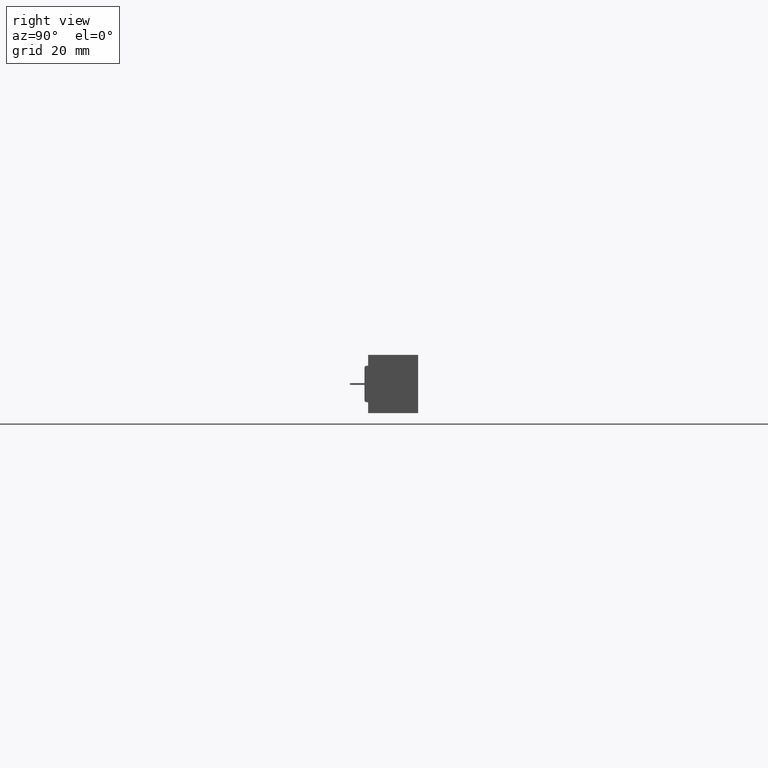
[diagram: clean part render]
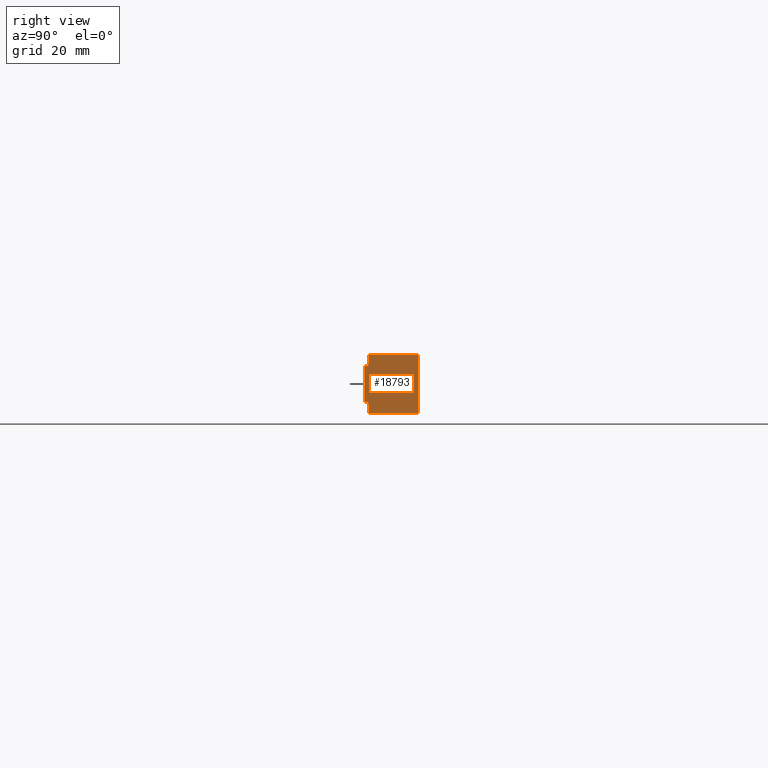
[diagram: same view with one face highlighted and labeled with its STEP entity id]
A machine part, right view. The second image highlights one B-rep face of the part: STEP entity #18793.
In plain terms, the highlighted planar face has unit normal (-1, 0, 0).
Its self-contained STEP definition (entity closure, byte-faithful):
#242 = ORIENTED_EDGE ( 'NONE', *, *, #6660, .T. ) ;
#287 = ORIENTED_EDGE ( 'NONE', *, *, #30748, .F. ) ;
#526 = CARTESIAN_POINT ( 'NONE',  ( 6.535999999999999600, 0.4600000000000000200, 0.0000000000000000000 ) ) ;
#1060 = CARTESIAN_POINT ( 'NONE',  ( 6.535999999999999600, 0.0000000000000000000, -0.4065000000000000300 ) ) ;
#1741 = EDGE_CURVE ( 'NONE', #19313, #21813, #28073, .T. ) ;
#1929 = DIRECTION ( 'NONE',  ( -1.000000000000000000, 0.0000000000000000000, -0.0000000000000000000 ) ) ;
#2642 = LINE ( 'NONE', #31042, #24795 ) ;
#2698 = ORIENTED_EDGE ( 'NONE', *, *, #27819, .F. ) ;
#3243 = ORIENTED_EDGE ( 'NONE', *, *, #25976, .T. ) ;
#3784 = VERTEX_POINT ( 'NONE', #8298 ) ;
#3962 = AXIS2_PLACEMENT_3D ( 'NONE', #18623, #1929, #21439 ) ;
#4544 = CARTESIAN_POINT ( 'NONE',  ( 6.535999999999999600, 0.0000000000000000000, -0.3915000000000000700 ) ) ;
#5618 = EDGE_CURVE ( 'NONE', #26488, #19313, #23492, .T. ) ;
#6484 = VECTOR ( 'NONE', #10250, 39.37007874015748100 ) ;
#6660 = EDGE_CURVE ( 'NONE', #3784, #11920, #29410, .T. ) ;
#6917 = VECTOR ( 'NONE', #29665, 39.37007874015748100 ) ;
#6937 = DIRECTION ( 'NONE',  ( 1.000000000000000000, 0.0000000000000000000, 0.0000000000000000000 ) ) ;
#7710 = DIRECTION ( 'NONE',  ( 0.0000000000000000000, 0.0000000000000000000, 1.000000000000000000 ) ) ;
#7961 = AXIS2_PLACEMENT_3D ( 'NONE', #32001, #32047, #7710 ) ;
#8298 = CARTESIAN_POINT ( 'NONE',  ( 6.535999999999999600, 0.01499999999999999900, -0.09349999999999997200 ) ) ;
#8403 = LINE ( 'NONE', #14850, #14083 ) ;
#8615 = VERTEX_POINT ( 'NONE', #4544 ) ;
#8809 = ORIENTED_EDGE ( 'NONE', *, *, #1741, .T. ) ;
#9381 = ORIENTED_EDGE ( 'NONE', *, *, #21696, .F. ) ;
#10163 = CARTESIAN_POINT ( 'NONE',  ( 6.535999999999999600, 0.0000000000000000000, 0.0000000000000000000 ) ) ;
#10250 = DIRECTION ( 'NONE',  ( 0.0000000000000000000, 1.000000000000000000, 0.0000000000000000000 ) ) ;
#10611 = EDGE_CURVE ( 'NONE', #3784, #31899, #33920, .T. ) ;
#10767 = LINE ( 'NONE', #1060, #33435 ) ;
#10806 = VECTOR ( 'NONE', #13019, 39.37007874015748100 ) ;
#11689 = CARTESIAN_POINT ( 'NONE',  ( 6.535999999999999600, 0.03100000000000000000, -0.4999999999999987800 ) ) ;
#11708 = LINE ( 'NONE', #10163, #10806 ) ;
#11920 = VERTEX_POINT ( 'NONE', #24100 ) ;
#12042 = DIRECTION ( 'NONE',  ( -0.0000000000000000000, 1.000000000000000000, -0.0000000000000000000 ) ) ;
#12804 = FACE_OUTER_BOUND ( 'NONE', #26079, .T. ) ;
#13019 = DIRECTION ( 'NONE',  ( -0.0000000000000000000, -0.0000000000000000000, 1.000000000000000000 ) ) ;
#13380 = CARTESIAN_POINT ( 'NONE',  ( 6.535999999999999600, 0.03100000000000000000, -0.4065000000000000300 ) ) ;
#13883 = VERTEX_POINT ( 'NONE', #16381 ) ;
#14083 = VECTOR ( 'NONE', #23166, 39.37007874015748100 ) ;
#14850 = CARTESIAN_POINT ( 'NONE',  ( 6.535999999999999600, 0.03100000000000000000, -0.5000000000000000000 ) ) ;
#15310 = VECTOR ( 'NONE', #12042, 39.37007874015748100 ) ;
#16325 = CARTESIAN_POINT ( 'NONE',  ( 6.535999999999999600, 0.0000000000000000000, -0.4999999999999987800 ) ) ;
#16381 = CARTESIAN_POINT ( 'NONE',  ( 6.535999999999999600, 0.03100000000000000000, 0.0000000000000000000 ) ) ;
#16402 = ORIENTED_EDGE ( 'NONE', *, *, #29276, .F. ) ;
#18623 = CARTESIAN_POINT ( 'NONE',  ( 6.535999999999999600, 0.0000000000000000000, 0.0000000000000000000 ) ) ;
#18793 = ADVANCED_FACE ( 'NONE', ( #12804 ), #32181, .F. ) ;
#19313 = VERTEX_POINT ( 'NONE', #20924 ) ;
#19424 = ORIENTED_EDGE ( 'NONE', *, *, #5618, .T. ) ;
#20593 = DIRECTION ( 'NONE',  ( 0.0000000000000000000, -1.000000000000000000, 0.0000000000000000000 ) ) ;
#20924 = CARTESIAN_POINT ( 'NONE',  ( 6.535999999999999600, 0.4600000000000000200, -0.4999999999999987800 ) ) ;
#21262 = EDGE_CURVE ( 'NONE', #8615, #11920, #11708, .T. ) ;
#21439 = DIRECTION ( 'NONE',  ( -0.0000000000000000000, 0.0000000000000000000, 1.000000000000000000 ) ) ;
#21696 = EDGE_CURVE ( 'NONE', #35197, #28483, #10767, .T. ) ;
#21813 = VERTEX_POINT ( 'NONE', #32056 ) ;
#22168 = CARTESIAN_POINT ( 'NONE',  ( 6.535999999999999600, 0.03100000000000000000, -0.09349999999999997200 ) ) ;
#22968 = DIRECTION ( 'NONE',  ( -0.0000000000000000000, 1.000000000000000000, -0.0000000000000000000 ) ) ;
#23166 = DIRECTION ( 'NONE',  ( 0.0000000000000000000, 0.0000000000000000000, 1.000000000000000000 ) ) ;
#23492 = LINE ( 'NONE', #16325, #15310 ) ;
#23512 = CARTESIAN_POINT ( 'NONE',  ( 6.535999999999999600, 0.01499999999999999900, -0.3915000000000000700 ) ) ;
#24100 = CARTESIAN_POINT ( 'NONE',  ( 6.535999999999999600, 0.0000000000000000000, -0.1084999999999999400 ) ) ;
#24795 = VECTOR ( 'NONE', #22968, 39.37007874015748100 ) ;
#25604 = ORIENTED_EDGE ( 'NONE', *, *, #21262, .F. ) ;
#25976 = EDGE_CURVE ( 'NONE', #8615, #28483, #27319, .T. ) ;
#26079 = EDGE_LOOP ( 'NONE', ( #19424, #8809, #16402, #2698, #35117, #242, #25604, #3243, #9381, #287 ) ) ;
#26281 = DIRECTION ( 'NONE',  ( 0.0000000000000000000, 0.0000000000000000000, 1.000000000000000000 ) ) ;
#26488 = VERTEX_POINT ( 'NONE', #11689 ) ;
#26774 = CARTESIAN_POINT ( 'NONE',  ( 6.535999999999999600, 0.0000000000000000000, -0.09349999999999997200 ) ) ;
#26925 = CARTESIAN_POINT ( 'NONE',  ( 6.535999999999999600, 0.03100000000000000000, -0.5000000000000000000 ) ) ;
#27215 = VECTOR ( 'NONE', #29138, 39.37007874015748100 ) ;
#27319 = CIRCLE ( 'NONE', #31157, 0.01499999999999997700 ) ;
#27819 = EDGE_CURVE ( 'NONE', #31899, #13883, #8403, .T. ) ;
#28073 = LINE ( 'NONE', #526, #27215 ) ;
#28483 = VERTEX_POINT ( 'NONE', #31642 ) ;
#28942 = LINE ( 'NONE', #26925, #6917 ) ;
#29138 = DIRECTION ( 'NONE',  ( -0.0000000000000000000, -0.0000000000000000000, 1.000000000000000000 ) ) ;
#29276 = EDGE_CURVE ( 'NONE', #13883, #21813, #2642, .T. ) ;
#29410 = CIRCLE ( 'NONE', #7961, 0.01499999999999999400 ) ;
#29665 = DIRECTION ( 'NONE',  ( 0.0000000000000000000, 0.0000000000000000000, 1.000000000000000000 ) ) ;
#30748 = EDGE_CURVE ( 'NONE', #26488, #35197, #28942, .T. ) ;
#31042 = CARTESIAN_POINT ( 'NONE',  ( 6.535999999999999600, 0.0000000000000000000, 0.0000000000000000000 ) ) ;
#31157 = AXIS2_PLACEMENT_3D ( 'NONE', #23512, #6937, #26281 ) ;
#31642 = CARTESIAN_POINT ( 'NONE',  ( 6.535999999999999600, 0.01499999999999999900, -0.4065000000000000300 ) ) ;
#31899 = VERTEX_POINT ( 'NONE', #22168 ) ;
#32001 = CARTESIAN_POINT ( 'NONE',  ( 6.535999999999999600, 0.01499999999999999900, -0.1084999999999999400 ) ) ;
#32047 = DIRECTION ( 'NONE',  ( 1.000000000000000000, 0.0000000000000000000, 0.0000000000000000000 ) ) ;
#32056 = CARTESIAN_POINT ( 'NONE',  ( 6.535999999999999600, 0.4600000000000000200, 0.0000000000000000000 ) ) ;
#32181 = PLANE ( 'NONE',  #3962 ) ;
#33435 = VECTOR ( 'NONE', #20593, 39.37007874015748100 ) ;
#33920 = LINE ( 'NONE', #26774, #6484 ) ;
#35117 = ORIENTED_EDGE ( 'NONE', *, *, #10611, .F. ) ;
#35197 = VERTEX_POINT ( 'NONE', #13380 ) ;